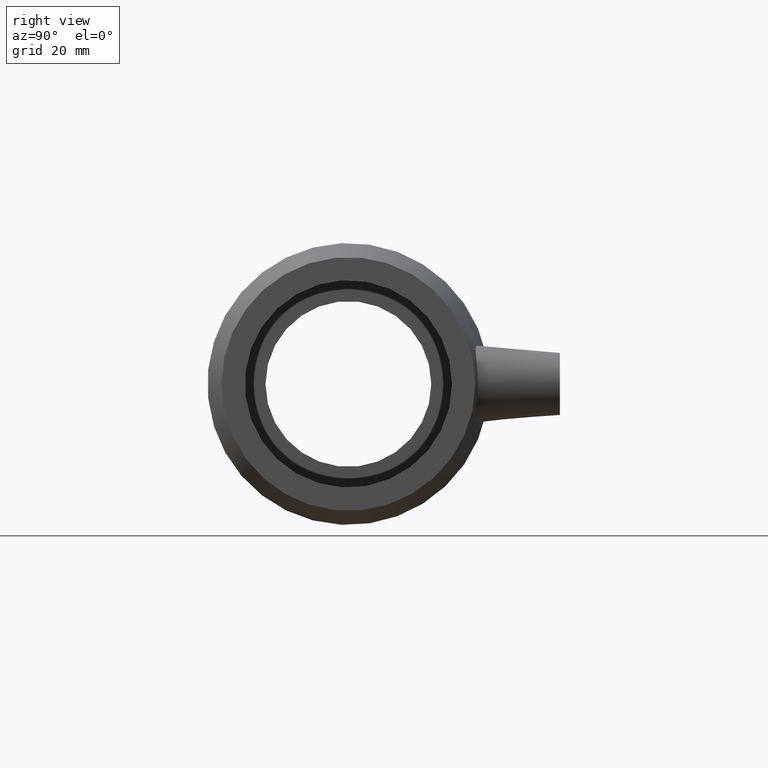
[diagram: clean part render]
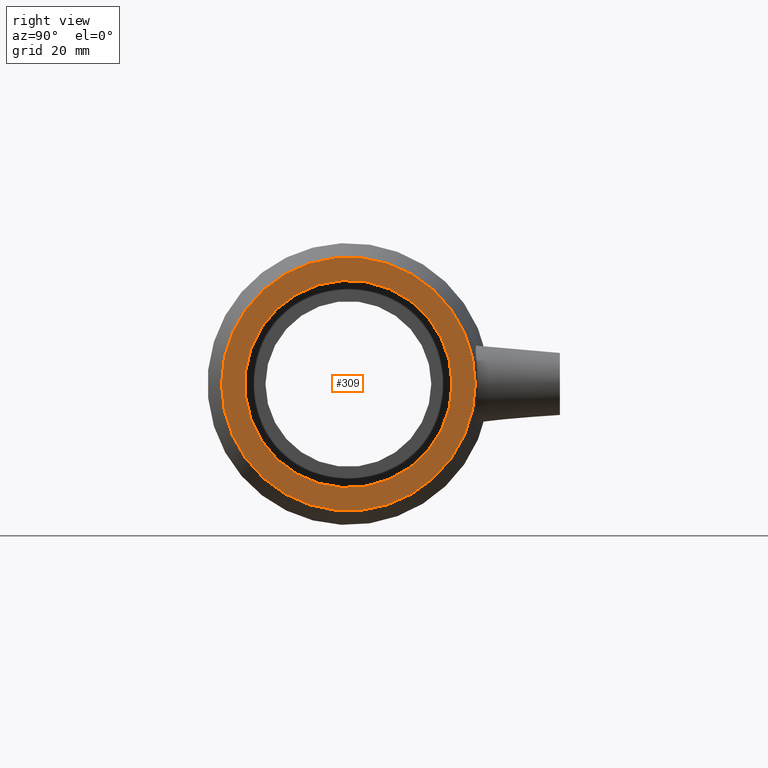
[diagram: same view with one face highlighted and labeled with its STEP entity id]
A machine part, right view. The second image highlights one B-rep face of the part: STEP entity #309.
In plain terms, the highlighted planar face has unit normal (1, 0, 0).
Its self-contained STEP definition (entity closure, byte-faithful):
#36=FACE_BOUND('',#117,.T.);
#75=FACE_OUTER_BOUND('',#116,.T.);
#116=EDGE_LOOP('',(#254));
#117=EDGE_LOOP('',(#255));
#157=CIRCLE('',#351,30.6);
#158=CIRCLE('',#353,25.);
#185=VERTEX_POINT('',#598);
#186=VERTEX_POINT('',#601);
#213=EDGE_CURVE('',#185,#185,#157,.T.);
#214=EDGE_CURVE('',#186,#186,#158,.T.);
#254=ORIENTED_EDGE('',*,*,#213,.T.);
#255=ORIENTED_EDGE('',*,*,#214,.F.);
#289=PLANE('',#352);
#309=ADVANCED_FACE('',(#75,#36),#289,.T.);
#351=AXIS2_PLACEMENT_3D('',#599,#433,#434);
#352=AXIS2_PLACEMENT_3D('',#600,#435,#436);
#353=AXIS2_PLACEMENT_3D('',#602,#437,#438);
#433=DIRECTION('center_axis',(1.,0.,0.));
#434=DIRECTION('ref_axis',(0.,0.,-1.));
#435=DIRECTION('center_axis',(1.,0.,0.));
#436=DIRECTION('ref_axis',(0.,0.,-1.));
#437=DIRECTION('center_axis',(1.,0.,0.));
#438=DIRECTION('ref_axis',(0.,0.,-1.));
#598=CARTESIAN_POINT('',(69.5,30.6,0.));
#599=CARTESIAN_POINT('Origin',(69.5,0.,0.));
#600=CARTESIAN_POINT('Origin',(69.5,25.,0.));
#601=CARTESIAN_POINT('',(69.5,25.,0.));
#602=CARTESIAN_POINT('Origin',(69.5,0.,0.));